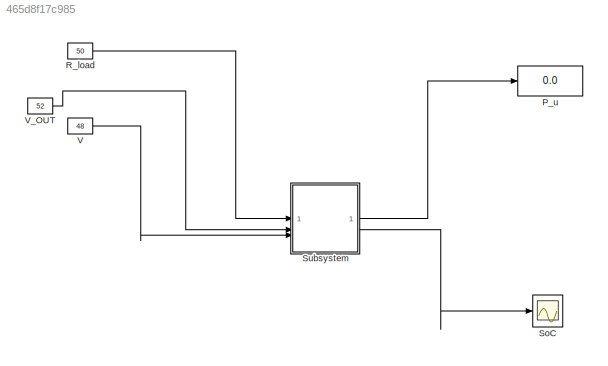
MODEL slx_465d8f17c985
KIND model
CONFIG AbsTol = auto
CONFIG EnableMultiTasking = off
CONFIG FixedStep = auto
CONFIG MaxStep = auto
CONFIG MinStep = auto
CONFIG RelTol = 1e-3
CONFIG SampleTimeConstraint = Unconstrained
CONFIG SolverName = VariableStepAuto
CONFIG StartTime = 0.0
CONFIG StopTime = 3600
BLOCK [Display] P_u
  Decimation = 1
BLOCK [Constant] R_load
  NameLocation = left
  Value = 50
BLOCK [Scope] SoC
  Floating = off
  NumInputPorts = 1
  ScopeSpecificationString = Simulink.scopes.TimeScopeBlockCfg('CurrentConfiguration', extmgr.ConfigurationSet(extmgr.Configuration('Core','General UI',true),extmgr.Configuration('Core','Source UI',true),extmgr.Configuration('Sources','WiredSimulink',true),extmgr.Configuration('Visuals','Time Domain',true,'SerializedDisplays',{struct('MinYLimReal','0.49549','MaxYLimReal','0.54063','YLabelReal','','MinYLimMag','0.49549','MaxYL...<+1441ch>
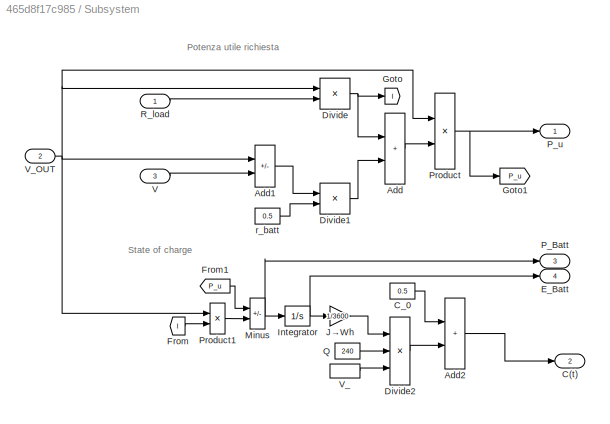
BLOCK [SubSystem] Subsystem
BLOCK [Sum] Subsystem/Add
  IconShape = rectangular
BLOCK [Sum] Subsystem/Add1
  IconShape = rectangular
  Inputs = +-
BLOCK [Sum] Subsystem/Add2
  IconShape = rectangular
BLOCK [Outport] Subsystem/C(t)
  NameLocation = right
  Port = 2
BLOCK [Constant] Subsystem/C_0
  NameLocation = left
  Value = 0.5
BLOCK [Product] Subsystem/Divide
  Inputs = */
BLOCK [Product] Subsystem/Divide1
  Inputs = */
BLOCK [Product] Subsystem/Divide2
  Inputs = *//
BLOCK [Outport] Subsystem/E_Batt
  NameLocation = right
  Port = 4
BLOCK [From] Subsystem/From
  GotoTag = I
BLOCK [From] Subsystem/From1
  GotoTag = P_u
BLOCK [Goto] Subsystem/Goto
  GotoTag = I
BLOCK [Goto] Subsystem/Goto1
  GotoTag = P_u
BLOCK [Integrator] Subsystem/Integrator
BLOCK [Gain] Subsystem/J→Wh
  Gain = 1/3600
  NameLocation = top
BLOCK [Sum] Subsystem/Minus
  IconShape = rectangular
  Inputs = +-
BLOCK [Outport] Subsystem/P_Batt
  NameLocation = right
  Port = 3
BLOCK [Outport] Subsystem/P_u
  NameLocation = right
BLOCK [Product] Subsystem/Product
BLOCK [Product] Subsystem/Product1
BLOCK [Constant] Subsystem/Q
  NameLocation = left
  Value = 240
BLOCK [Inport] Subsystem/R_load
BLOCK [Inport] Subsystem/V
  Port = 3
BLOCK [InportShadow] Subsystem/V_
  NameLocation = left
  Port = 3
BLOCK [Inport] Subsystem/V_OUT
  Port = 2
BLOCK [Constant] Subsystem/r_batt
  Value = 0.5
BLOCK [Constant] V
  NameLocation = left
  Value = 48
BLOCK [Constant] V_OUT
  NameLocation = left
  Value = 52
ANNOTATION Subsystem: Potenza utile richiesta
ANNOTATION Subsystem: State of charge
LINE R_load:1 -> Subsystem:1
LINE Subsystem/Add1:1 -> Subsystem/Divide1:1
LINE Subsystem/Add2:1 -> Subsystem/C(t):1
LINE Subsystem/Add:1 -> Subsystem/Product:2
LINE Subsystem/C_0:1 -> Subsystem/Add2:1
LINE Subsystem/Divide1:1 -> Subsystem/Add:2
LINE Subsystem/Divide2:1 -> Subsystem/Add2:2
NET Subsystem/Divide:1 -> Subsystem/Add:1, Subsystem/Goto:1
LINE Subsystem/From1:1 -> Subsystem/Minus:1
LINE Subsystem/From:1 -> Subsystem/Product1:2
NET Subsystem/Integrator:1 -> Subsystem/E_Batt:1, Subsystem/J→Wh:1
LINE Subsystem/J→Wh:1 -> Subsystem/Divide2:1
NET Subsystem/Minus:1 -> Subsystem/Integrator:1, Subsystem/P_Batt:1
LINE Subsystem/Product1:1 -> Subsystem/Minus:2
NET Subsystem/Product:1 -> Subsystem/Goto1:1, Subsystem/P_u:1
LINE Subsystem/Q:1 -> Subsystem/Divide2:2
LINE Subsystem/R_load:1 -> Subsystem/Divide:2
LINE Subsystem/V:1 -> Subsystem/Add1:2
LINE Subsystem/V_:1 -> Subsystem/Divide2:3
NET Subsystem/V_OUT:1 -> Subsystem/Add1:1, Subsystem/Divide:1, Subsystem/Product1:1, Subsystem/Product:1
LINE Subsystem/r_batt:1 -> Subsystem/Divide1:2
LINE Subsystem:1 -> P_u:1
LINE Subsystem:2 -> SoC:1
LINE V:1 -> Subsystem:3
LINE V_OUT:1 -> Subsystem:2
note: NET lines group one-source signal fan-out (src -> all destinations, sorted); 1:1 wires keep LINE
